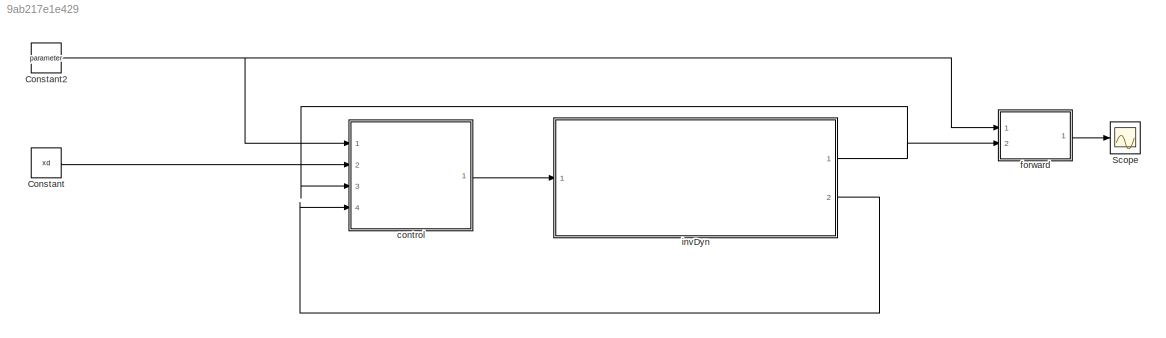
MODEL slx_9ab217e1e429
KIND model
CONFIG AbsTol = auto
CONFIG EnableMultiTasking = off
CONFIG FixedStep = auto
CONFIG MaxStep = auto
CONFIG MinStep = auto
CONFIG RelTol = 1e-3
CONFIG SampleTimeConstraint = Unconstrained
CONFIG Solver = VariableStepAuto
CONFIG SolverName = VariableStepAuto
CONFIG StartTime = 0.0
CONFIG StopTime = 10.0
BLOCK [Constant] Constant
  Value = xd
BLOCK [Constant] Constant2
  Value = parameter
BLOCK [Scope] Scope
  Floating = off
  NumInputPorts = 1
  Ports = [1]
  ScopeSpecificationString = Simulink.scopes.TimeScopeBlockCfg('CurrentConfiguration', extmgr.ConfigurationSet(extmgr.Configuration('Core','General UI',true),extmgr.Configuration('Core','Source UI',true),extmgr.Configuration('Sources','WiredSimulink',true),extmgr.Configuration('Visuals','Time Domain',true),extmgr.Configuration('Tools','Plot Navigation',true),extmgr.Configuration('Tools','Measurements',true)),'Version','2019b'...<+1ch>
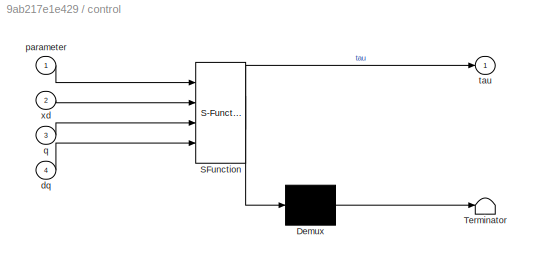
BLOCK [SubSystem] control
  ErrorFcn = Stateflow.Translate.translate
  PermitHierarchicalResolution = ExplicitOnly
  Ports = [4, 1]
  RequestExecContextInheritance = off
  SFBlockType = MATLAB Function
  TreatAsAtomicUnit = on
BLOCK [Demux] control/ Demux 
  Outputs = 1
  Ports = [1, 1]
BLOCK [S-Function] control/ SFunction 
  EnableBusSupport = on
  FunctionName = sf_sfun
  PortCounts = [4 2]
  Ports = [4, 2]
  SFcnIsStateOwnerBlock = off
  SFunctionDeploymentMode = off
  Tag = Stateflow S-Function 1
BLOCK [Terminator] control/ Terminator 
BLOCK [Inport] control/dq
  IconDisplay = Port number
  Port = 4
BLOCK [Inport] control/parameter
  IconDisplay = Port number
BLOCK [Inport] control/q
  IconDisplay = Port number
  Port = 3
BLOCK [Outport] control/tau
  IconDisplay = Port number
BLOCK [Inport] control/xd
  IconDisplay = Port number
  Port = 2
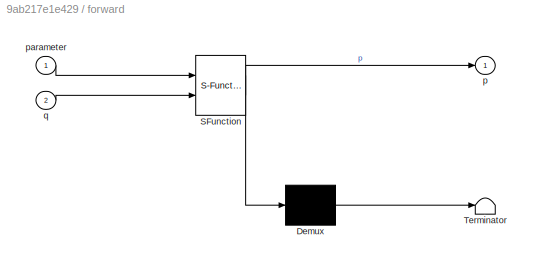
BLOCK [SubSystem] forward 
  ErrorFcn = Stateflow.Translate.translate
  PermitHierarchicalResolution = ExplicitOnly
  Ports = [2, 1]
  RequestExecContextInheritance = off
  SFBlockType = MATLAB Function
  TreatAsAtomicUnit = on
BLOCK [Demux] forward / Demux 
  Outputs = 1
  Ports = [1, 1]
BLOCK [S-Function] forward / SFunction 
  EnableBusSupport = on
  FunctionName = sf_sfun
  PortCounts = [2 2]
  Ports = [2, 2]
  SFcnIsStateOwnerBlock = off
  SFunctionDeploymentMode = off
  Tag = Stateflow S-Function 3
BLOCK [Terminator] forward / Terminator 
BLOCK [Outport] forward /p
  IconDisplay = Port number
BLOCK [Inport] forward /parameter
  IconDisplay = Port number
BLOCK [Inport] forward /q
  IconDisplay = Port number
  Port = 2
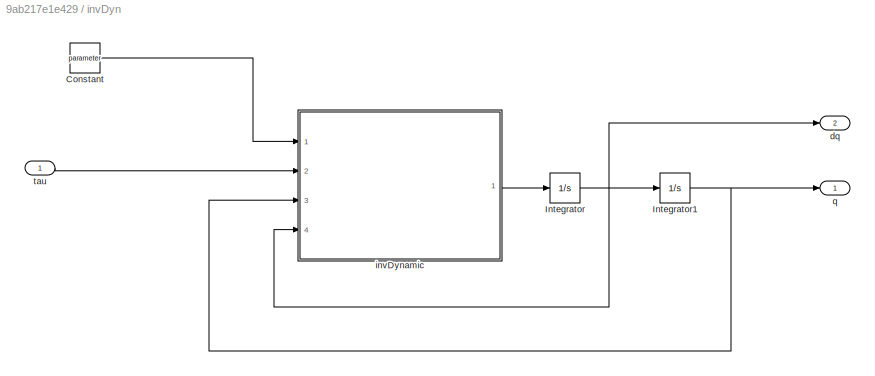
BLOCK [SubSystem] invDyn 
  Ports = [1, 2]
  RequestExecContextInheritance = off
BLOCK [Constant] invDyn /Constant
  Value = parameter
BLOCK [Integrator] invDyn /Integrator
  InitialCondition = dq0
  Ports = [1, 1]
BLOCK [Integrator] invDyn /Integrator1
  InitialCondition = q0
  Ports = [1, 1]
BLOCK [Outport] invDyn /dq
  IconDisplay = Port number
  Port = 2
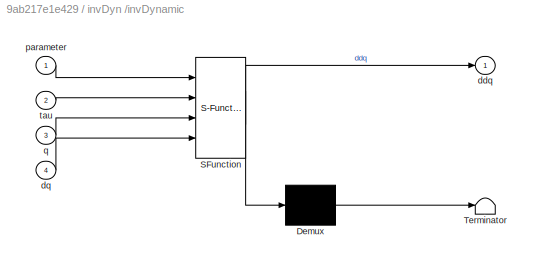
BLOCK [SubSystem] invDyn /invDynamic 
  ErrorFcn = Stateflow.Translate.translate
  PermitHierarchicalResolution = ExplicitOnly
  Ports = [4, 1]
  RequestExecContextInheritance = off
  SFBlockType = MATLAB Function
  TreatAsAtomicUnit = on
BLOCK [Demux] invDyn /invDynamic / Demux 
  Outputs = 1
  Ports = [1, 1]
BLOCK [S-Function] invDyn /invDynamic / SFunction 
  EnableBusSupport = on
  FunctionName = sf_sfun
  PortCounts = [4 2]
  Ports = [4, 2]
  SFcnIsStateOwnerBlock = off
  SFunctionDeploymentMode = off
  Tag = Stateflow S-Function 2
BLOCK [Terminator] invDyn /invDynamic / Terminator 
BLOCK [Outport] invDyn /invDynamic /ddq
  IconDisplay = Port number
BLOCK [Inport] invDyn /invDynamic /dq
  IconDisplay = Port number
  Port = 4
BLOCK [Inport] invDyn /invDynamic /parameter
  IconDisplay = Port number
BLOCK [Inport] invDyn /invDynamic /q
  IconDisplay = Port number
  Port = 3
BLOCK [Inport] invDyn /invDynamic /tau
  IconDisplay = Port number
  Port = 2
BLOCK [Outport] invDyn /q
  IconDisplay = Port number
BLOCK [Inport] invDyn /tau
  IconDisplay = Port number
NET Constant2:1 -> control:1, forward :1
LINE Constant:1 -> control:2
LINE control:1 -> invDyn :1
LINE forward :1 -> Scope:1
LINE invDyn /Constant:1 -> invDyn /invDynamic :1
NET invDyn /Integrator1:1 -> invDyn /invDynamic :3, invDyn /q:1
NET invDyn /Integrator:1 -> invDyn /Integrator1:1, invDyn /dq:1, invDyn /invDynamic :4
LINE invDyn /invDynamic :1 -> invDyn /Integrator:1
LINE invDyn /tau:1 -> invDyn /invDynamic :2
NET invDyn :1 -> control:3, forward :2
LINE invDyn :2 -> control:4
note: NET lines group one-source signal fan-out (src -> all destinations, sorted); 1:1 wires keep LINE
CHART control states=1 transitions=1
  STATE_LABEL 'eML_blk_kernel()'
  STATE_LABEL "SCRIPT:\nfunction tau = control(parameter, xd, q,dq)\n\n    J = J_end_f(parameter,q,dq);\n    Jp = J(1:3,:);  %%SOLO QUELLE RELATIVe alla pos\n    \n    G = G_f(parameter,q,dq);\n    p_now = forwardKinematics(parameter, q);\n    Kv = 100*eye(6);\n    K = eye(3);\n    JpK = (Jp')*K;\n    e = (xd - p_now(1:3,4));\n    \n    tau = JpK*e - Kv*dq - G;\n\nend"
CHART invDyn
/invDynamic
 states=1 transitions=1
  STATE_LABEL 'eML_blk_kernel()'
  STATE_LABEL 'SCRIPT:\nfunction ddq = inverseDynamic(parameter,tau,q,dq)\n\n    B = B_f(parameter,q,dq);\n    C = C_f(parameter,q,dq); \n    G = G_f(parameter,q,dq);\n\n    ddq = B\\(tau-C*dq-G);\n    \n    \n\n      '
CHART forward
 states=1 transitions=1
  STATE_LABEL 'eML_blk_kernel()'
  STATE_LABEL 'SCRIPT:\nfunction p = forwardKine(parameter, q)\n\n    [Etip,T00,T01,T12,T23,T34,T45,T56] = forwardKinematics(parameter, q);\n\n    p = Etip(1:3,4);'
